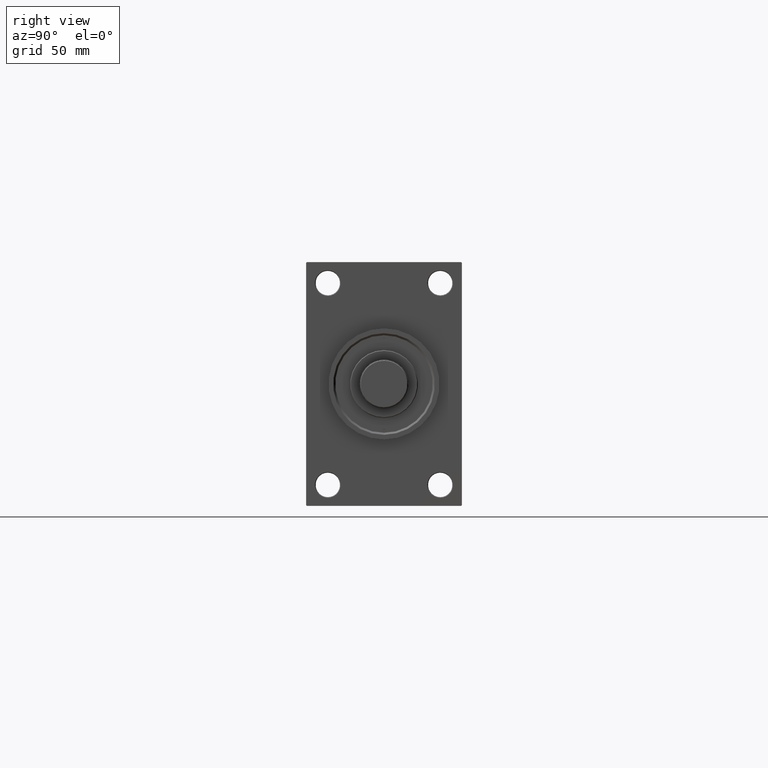
[diagram: clean part render]
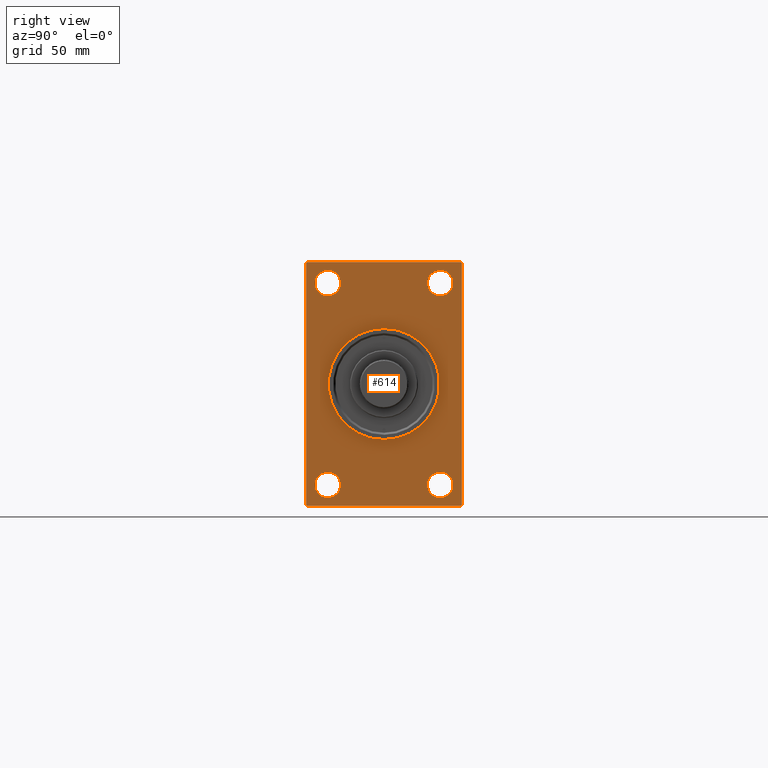
[diagram: same view with one face highlighted and labeled with its STEP entity id]
A machine part, right view. The second image highlights one B-rep face of the part: STEP entity #614.
In plain terms, the highlighted planar face has unit normal (-1, 0, 0).
Its self-contained STEP definition (entity closure, byte-faithful):
#186 = LINE ( 'NONE', #11928, #27944 ) ;
#614 = ADVANCED_FACE ( 'NONE', ( #18378, #29377, #36970, #14467, #10068, #39918 ), #6402, .F. ) ;
#741 = VERTEX_POINT ( 'NONE', #16152 ) ;
#905 = CARTESIAN_POINT ( 'NONE',  ( 388.9999999999999432, 57.49999999999997158, 89.49999999999998579 ) ) ;
#1631 = CIRCLE ( 'NONE', #32864, 9.500000000000008882 ) ;
#1677 = ORIENTED_EDGE ( 'NONE', *, *, #29869, .T. ) ;
#1785 = CARTESIAN_POINT ( 'NONE',  ( 388.9999999999999432, -41.49999999999999289, -64.99999999999997158 ) ) ;
#1885 = CIRCLE ( 'NONE', #4976, 9.500000000000008882 ) ;
#2020 = CARTESIAN_POINT ( 'NONE',  ( 388.9999999999999432, 0.000000000000000000, 0.000000000000000000 ) ) ;
#2467 = DIRECTION ( 'NONE',  ( -1.000000000000000000, 0.000000000000000000, -0.000000000000000000 ) ) ;
#2492 = EDGE_LOOP ( 'NONE', ( #21544, #5033 ) ) ;
#2628 = ORIENTED_EDGE ( 'NONE', *, *, #8871, .T. ) ;
#3345 = CARTESIAN_POINT ( 'NONE',  ( 388.9999999999999432, 41.50000000000000711, -64.99999999999998579 ) ) ;
#3529 = EDGE_CURVE ( 'NONE', #44452, #13994, #19386, .T. ) ;
#3975 = DIRECTION ( 'NONE',  ( 0.000000000000000000, -1.000000000000000000, -1.206764157201257291E-16 ) ) ;
#4473 = EDGE_CURVE ( 'NONE', #8423, #4989, #23293, .T. ) ;
#4744 = EDGE_CURVE ( 'NONE', #25837, #741, #1885, .T. ) ;
#4976 = AXIS2_PLACEMENT_3D ( 'NONE', #38638, #46208, #23719 ) ;
#4989 = VERTEX_POINT ( 'NONE', #8611 ) ;
#5033 = ORIENTED_EDGE ( 'NONE', *, *, #24289, .F. ) ;
#5506 = CARTESIAN_POINT ( 'NONE',  ( 388.9999999999999432, 41.50000000000000711, 84.00000000000001421 ) ) ;
#5995 = CIRCLE ( 'NONE', #23983, 9.500000000000008882 ) ;
#6026 = EDGE_CURVE ( 'NONE', #35867, #35898, #27665, .T. ) ;
#6139 = DIRECTION ( 'NONE',  ( 0.000000000000000000, 0.000000000000000000, 1.000000000000000000 ) ) ;
#6316 = DIRECTION ( 'NONE',  ( -1.000000000000000000, 0.000000000000000000, -0.000000000000000000 ) ) ;
#6402 = PLANE ( 'NONE',  #43926 ) ;
#6607 = DIRECTION ( 'NONE',  ( -0.000000000000000000, -0.7071067811865524577, -0.7071067811865426878 ) ) ;
#7056 = CIRCLE ( 'NONE', #23476, 9.500000000000008882 ) ;
#8206 = EDGE_LOOP ( 'NONE', ( #17126, #43813 ) ) ;
#8376 = AXIS2_PLACEMENT_3D ( 'NONE', #46915, #6316, #10700 ) ;
#8423 = VERTEX_POINT ( 'NONE', #43963 ) ;
#8611 = CARTESIAN_POINT ( 'NONE',  ( 388.9999999999999432, -57.00000000000007105, 89.99999999999997158 ) ) ;
#8641 = VERTEX_POINT ( 'NONE', #48041 ) ;
#8871 = EDGE_CURVE ( 'NONE', #44452, #8423, #38978, .T. ) ;
#10068 = FACE_BOUND ( 'NONE', #2492, .T. ) ;
#10224 = DIRECTION ( 'NONE',  ( 0.000000000000000000, 0.000000000000000000, 1.000000000000000000 ) ) ;
#10517 = CARTESIAN_POINT ( 'NONE',  ( 388.9999999999999432, -41.49999999999999289, -74.49999999999998579 ) ) ;
#10540 = ORIENTED_EDGE ( 'NONE', *, *, #31411, .T. ) ;
#10699 = AXIS2_PLACEMENT_3D ( 'NONE', #43756, #25867, #10224 ) ;
#10700 = DIRECTION ( 'NONE',  ( 0.000000000000000000, 0.000000000000000000, 1.000000000000000000 ) ) ;
#10956 = DIRECTION ( 'NONE',  ( 0.000000000000000000, 0.000000000000000000, 1.000000000000000000 ) ) ;
#11071 = CARTESIAN_POINT ( 'NONE',  ( 388.9999999999999432, 56.99999999999997868, -90.00000000000000000 ) ) ;
#11519 = CIRCLE ( 'NONE', #8376, 9.500000000000008882 ) ;
#11709 = VERTEX_POINT ( 'NONE', #23365 ) ;
#11928 = CARTESIAN_POINT ( 'NONE',  ( 388.9999999999999432, 57.49999999999997868, -89.50000000000001421 ) ) ;
#12326 = AXIS2_PLACEMENT_3D ( 'NONE', #10517, #2467, #6139 ) ;
#12495 = EDGE_LOOP ( 'NONE', ( #27451, #18751 ) ) ;
#12797 = ORIENTED_EDGE ( 'NONE', *, *, #20878, .T. ) ;
#13023 = DIRECTION ( 'NONE',  ( 0.000000000000000000, 0.000000000000000000, -1.000000000000000000 ) ) ;
#13994 = VERTEX_POINT ( 'NONE', #30915 ) ;
#13999 = DIRECTION ( 'NONE',  ( -1.000000000000000000, 0.000000000000000000, -0.000000000000000000 ) ) ;
#14320 = CIRCLE ( 'NONE', #29942, 41.00000000000000000 ) ;
#14467 = FACE_BOUND ( 'NONE', #48035, .T. ) ;
#14653 = CARTESIAN_POINT ( 'NONE',  ( 388.9999999999999432, 57.49999999999997868, -90.00000000000000000 ) ) ;
#14827 = DIRECTION ( 'NONE',  ( 0.000000000000000000, 0.000000000000000000, -1.000000000000000000 ) ) ;
#14847 = VECTOR ( 'NONE', #14827, 1000.000000000000000 ) ;
#15814 = VECTOR ( 'NONE', #22232, 1000.000000000000000 ) ;
#15819 = DIRECTION ( 'NONE',  ( -0.000000000000000000, 0.7071067811865573427, 0.7071067811865378028 ) ) ;
#15911 = DIRECTION ( 'NONE',  ( -1.000000000000000000, 0.000000000000000000, -0.000000000000000000 ) ) ;
#16052 = CARTESIAN_POINT ( 'NONE',  ( 388.9999999999999432, -57.00000000000002132, -90.00000000000001421 ) ) ;
#16152 = CARTESIAN_POINT ( 'NONE',  ( 388.9999999999999432, 41.50000000000000711, -84.00000000000000000 ) ) ;
#17126 = ORIENTED_EDGE ( 'NONE', *, *, #48319, .T. ) ;
#17259 = DIRECTION ( 'NONE',  ( 0.000000000000000000, 0.000000000000000000, 1.000000000000000000 ) ) ;
#17438 = ORIENTED_EDGE ( 'NONE', *, *, #4473, .T. ) ;
#17479 = VECTOR ( 'NONE', #3975, 1000.000000000000000 ) ;
#18309 = CARTESIAN_POINT ( 'NONE',  ( 388.9999999999999432, -57.50000000000002132, -89.50000000000002842 ) ) ;
#18378 = FACE_BOUND ( 'NONE', #8206, .T. ) ;
#18648 = VERTEX_POINT ( 'NONE', #33618 ) ;
#18751 = ORIENTED_EDGE ( 'NONE', *, *, #4744, .T. ) ;
#19115 = ORIENTED_EDGE ( 'NONE', *, *, #25782, .T. ) ;
#19349 = EDGE_CURVE ( 'NONE', #4989, #18648, #33022, .T. ) ;
#19386 = LINE ( 'NONE', #23038, #47109 ) ;
#19716 = EDGE_CURVE ( 'NONE', #8641, #34869, #11519, .T. ) ;
#20085 = DIRECTION ( 'NONE',  ( 0.000000000000000000, 0.000000000000000000, 1.000000000000000000 ) ) ;
#20695 = DIRECTION ( 'NONE',  ( -1.000000000000000000, 0.000000000000000000, -0.000000000000000000 ) ) ;
#20878 = EDGE_CURVE ( 'NONE', #43655, #13994, #186, .T. ) ;
#21330 = CARTESIAN_POINT ( 'NONE',  ( 388.9999999999999432, 0.000000000000000000, 0.000000000000000000 ) ) ;
#21526 = VECTOR ( 'NONE', #23566, 1000.000000000000114 ) ;
#21544 = ORIENTED_EDGE ( 'NONE', *, *, #41254, .F. ) ;
#21707 = ORIENTED_EDGE ( 'NONE', *, *, #3529, .F. ) ;
#22232 = DIRECTION ( 'NONE',  ( 0.000000000000000000, -1.000000000000000000, -1.206764157201257045E-16 ) ) ;
#23038 = CARTESIAN_POINT ( 'NONE',  ( 388.9999999999999432, 57.49999999999997158, 89.99999999999998579 ) ) ;
#23293 = LINE ( 'NONE', #30861, #17479 ) ;
#23365 = CARTESIAN_POINT ( 'NONE',  ( 388.9999999999999432, -57.00000000000002132, -90.00000000000001421 ) ) ;
#23400 = DIRECTION ( 'NONE',  ( 0.000000000000000000, 0.7071067811865965336, -0.7071067811864985009 ) ) ;
#23476 = AXIS2_PLACEMENT_3D ( 'NONE', #48052, #36583, #38261 ) ;
#23566 = DIRECTION ( 'NONE',  ( 0.000000000000000000, -0.7071067811865474617, 0.7071067811865474617 ) ) ;
#23628 = EDGE_LOOP ( 'NONE', ( #19115, #43058, #28120, #12797, #21707, #2628, #17438, #39202 ) ) ;
#23719 = DIRECTION ( 'NONE',  ( 0.000000000000000000, 0.000000000000000000, 1.000000000000000000 ) ) ;
#23983 = AXIS2_PLACEMENT_3D ( 'NONE', #29538, #44478, #10956 ) ;
#24289 = EDGE_CURVE ( 'NONE', #31547, #29474, #48366, .T. ) ;
#25579 = DIRECTION ( 'NONE',  ( 1.000000000000000000, 0.000000000000000000, 0.000000000000000000 ) ) ;
#25782 = EDGE_CURVE ( 'NONE', #18648, #37578, #36368, .T. ) ;
#25837 = VERTEX_POINT ( 'NONE', #3345 ) ;
#25867 = DIRECTION ( 'NONE',  ( -1.000000000000000000, 0.000000000000000000, -0.000000000000000000 ) ) ;
#26296 = CARTESIAN_POINT ( 'NONE',  ( 388.9999999999999432, 0.000000000000000000, 0.000000000000000000 ) ) ;
#27174 = CARTESIAN_POINT ( 'NONE',  ( 388.9999999999999432, -41.49999999999999289, -83.99999999999998579 ) ) ;
#27220 = EDGE_LOOP ( 'NONE', ( #30371, #10540 ) ) ;
#27451 = ORIENTED_EDGE ( 'NONE', *, *, #48326, .T. ) ;
#27557 = VERTEX_POINT ( 'NONE', #27174 ) ;
#27633 = CARTESIAN_POINT ( 'NONE',  ( 388.9999999999999432, -41.49999999999999289, 74.50000000000001421 ) ) ;
#27665 = CIRCLE ( 'NONE', #31583, 9.500000000000008882 ) ;
#27819 = CARTESIAN_POINT ( 'NONE',  ( 388.9999999999999432, -41.49999999999999289, 84.00000000000001421 ) ) ;
#27871 = ORIENTED_EDGE ( 'NONE', *, *, #19716, .T. ) ;
#27944 = VECTOR ( 'NONE', #15819, 1000.000000000000000 ) ;
#28120 = ORIENTED_EDGE ( 'NONE', *, *, #35756, .F. ) ;
#29377 = FACE_BOUND ( 'NONE', #27220, .T. ) ;
#29449 = CIRCLE ( 'NONE', #10699, 9.500000000000008882 ) ;
#29474 = VERTEX_POINT ( 'NONE', #41080 ) ;
#29538 = CARTESIAN_POINT ( 'NONE',  ( 388.9999999999999432, -41.49999999999999289, 74.50000000000001421 ) ) ;
#29869 = EDGE_CURVE ( 'NONE', #34869, #8641, #7056, .T. ) ;
#29942 = AXIS2_PLACEMENT_3D ( 'NONE', #26296, #25579, #40981 ) ;
#30371 = ORIENTED_EDGE ( 'NONE', *, *, #45547, .T. ) ;
#30861 = CARTESIAN_POINT ( 'NONE',  ( 388.9999999999999432, 57.49999999999997158, 89.99999999999998579 ) ) ;
#30915 = CARTESIAN_POINT ( 'NONE',  ( 388.9999999999999432, 57.49999999999997868, -89.49999999999995737 ) ) ;
#31411 = EDGE_CURVE ( 'NONE', #35130, #27557, #1631, .T. ) ;
#31491 = CARTESIAN_POINT ( 'NONE',  ( 388.9999999999999432, -41.49999999999999289, 65.00000000000000000 ) ) ;
#31547 = VERTEX_POINT ( 'NONE', #44149 ) ;
#31583 = AXIS2_PLACEMENT_3D ( 'NONE', #27633, #15911, #20085 ) ;
#32701 = CARTESIAN_POINT ( 'NONE',  ( 388.9999999999999432, -57.50000000000002132, 89.99999999999997158 ) ) ;
#32864 = AXIS2_PLACEMENT_3D ( 'NONE', #47076, #20695, #17259 ) ;
#33022 = LINE ( 'NONE', #47936, #37275 ) ;
#33618 = CARTESIAN_POINT ( 'NONE',  ( 388.9999999999999432, -57.50000000000002132, 89.50000000000002842 ) ) ;
#34869 = VERTEX_POINT ( 'NONE', #5506 ) ;
#35066 = CARTESIAN_POINT ( 'NONE',  ( 388.9999999999999432, 56.99999999999997158, 89.99999999999998579 ) ) ;
#35130 = VERTEX_POINT ( 'NONE', #1785 ) ;
#35756 = EDGE_CURVE ( 'NONE', #43655, #11709, #44972, .T. ) ;
#35867 = VERTEX_POINT ( 'NONE', #27819 ) ;
#35898 = VERTEX_POINT ( 'NONE', #31491 ) ;
#36246 = DIRECTION ( 'NONE',  ( -0.000000000000000000, 0.000000000000000000, 1.000000000000000000 ) ) ;
#36368 = LINE ( 'NONE', #32701, #14847 ) ;
#36583 = DIRECTION ( 'NONE',  ( -1.000000000000000000, 0.000000000000000000, -0.000000000000000000 ) ) ;
#36970 = FACE_BOUND ( 'NONE', #12495, .T. ) ;
#37275 = VECTOR ( 'NONE', #6607, 1000.000000000000000 ) ;
#37484 = DIRECTION ( 'NONE',  ( 0.000000000000000000, 3.854941057726238467E-17, -1.000000000000000000 ) ) ;
#37578 = VERTEX_POINT ( 'NONE', #18309 ) ;
#38261 = DIRECTION ( 'NONE',  ( 0.000000000000000000, 0.000000000000000000, 1.000000000000000000 ) ) ;
#38638 = CARTESIAN_POINT ( 'NONE',  ( 388.9999999999999432, 41.50000000000000711, -74.50000000000000000 ) ) ;
#38978 = LINE ( 'NONE', #35066, #21526 ) ;
#39202 = ORIENTED_EDGE ( 'NONE', *, *, #19349, .T. ) ;
#39786 = AXIS2_PLACEMENT_3D ( 'NONE', #2020, #46035, #13023 ) ;
#39918 = FACE_OUTER_BOUND ( 'NONE', #23628, .T. ) ;
#40981 = DIRECTION ( 'NONE',  ( 0.000000000000000000, 0.000000000000000000, -1.000000000000000000 ) ) ;
#41080 = CARTESIAN_POINT ( 'NONE',  ( 388.9999999999999432, 0.000000000000000000, 41.00000000000000000 ) ) ;
#41254 = EDGE_CURVE ( 'NONE', #29474, #31547, #14320, .T. ) ;
#41757 = LINE ( 'NONE', #16052, #46671 ) ;
#42739 = CIRCLE ( 'NONE', #12326, 9.500000000000008882 ) ;
#43058 = ORIENTED_EDGE ( 'NONE', *, *, #45896, .T. ) ;
#43655 = VERTEX_POINT ( 'NONE', #11071 ) ;
#43756 = CARTESIAN_POINT ( 'NONE',  ( 388.9999999999999432, 41.50000000000000711, -74.50000000000000000 ) ) ;
#43813 = ORIENTED_EDGE ( 'NONE', *, *, #6026, .T. ) ;
#43926 = AXIS2_PLACEMENT_3D ( 'NONE', #21330, #13999, #36246 ) ;
#43963 = CARTESIAN_POINT ( 'NONE',  ( 388.9999999999999432, 56.99999999999997158, 89.99999999999998579 ) ) ;
#44149 = CARTESIAN_POINT ( 'NONE',  ( 388.9999999999999432, 5.021051876504148963E-15, -41.00000000000000000 ) ) ;
#44452 = VERTEX_POINT ( 'NONE', #905 ) ;
#44478 = DIRECTION ( 'NONE',  ( -1.000000000000000000, 0.000000000000000000, -0.000000000000000000 ) ) ;
#44972 = LINE ( 'NONE', #14653, #15814 ) ;
#45547 = EDGE_CURVE ( 'NONE', #27557, #35130, #42739, .T. ) ;
#45896 = EDGE_CURVE ( 'NONE', #37578, #11709, #41757, .T. ) ;
#46035 = DIRECTION ( 'NONE',  ( 1.000000000000000000, 0.000000000000000000, 0.000000000000000000 ) ) ;
#46208 = DIRECTION ( 'NONE',  ( -1.000000000000000000, 0.000000000000000000, -0.000000000000000000 ) ) ;
#46671 = VECTOR ( 'NONE', #23400, 1000.000000000000114 ) ;
#46915 = CARTESIAN_POINT ( 'NONE',  ( 388.9999999999999432, 41.50000000000000711, 74.50000000000001421 ) ) ;
#47076 = CARTESIAN_POINT ( 'NONE',  ( 388.9999999999999432, -41.49999999999999289, -74.49999999999998579 ) ) ;
#47109 = VECTOR ( 'NONE', #37484, 1000.000000000000000 ) ;
#47936 = CARTESIAN_POINT ( 'NONE',  ( 388.9999999999999432, -57.50000000000002132, 89.50000000000002842 ) ) ;
#48035 = EDGE_LOOP ( 'NONE', ( #27871, #1677 ) ) ;
#48041 = CARTESIAN_POINT ( 'NONE',  ( 388.9999999999999432, 41.50000000000000711, 65.00000000000000000 ) ) ;
#48052 = CARTESIAN_POINT ( 'NONE',  ( 388.9999999999999432, 41.50000000000000711, 74.50000000000001421 ) ) ;
#48319 = EDGE_CURVE ( 'NONE', #35898, #35867, #5995, .T. ) ;
#48326 = EDGE_CURVE ( 'NONE', #741, #25837, #29449, .T. ) ;
#48366 = CIRCLE ( 'NONE', #39786, 41.00000000000000000 ) ;